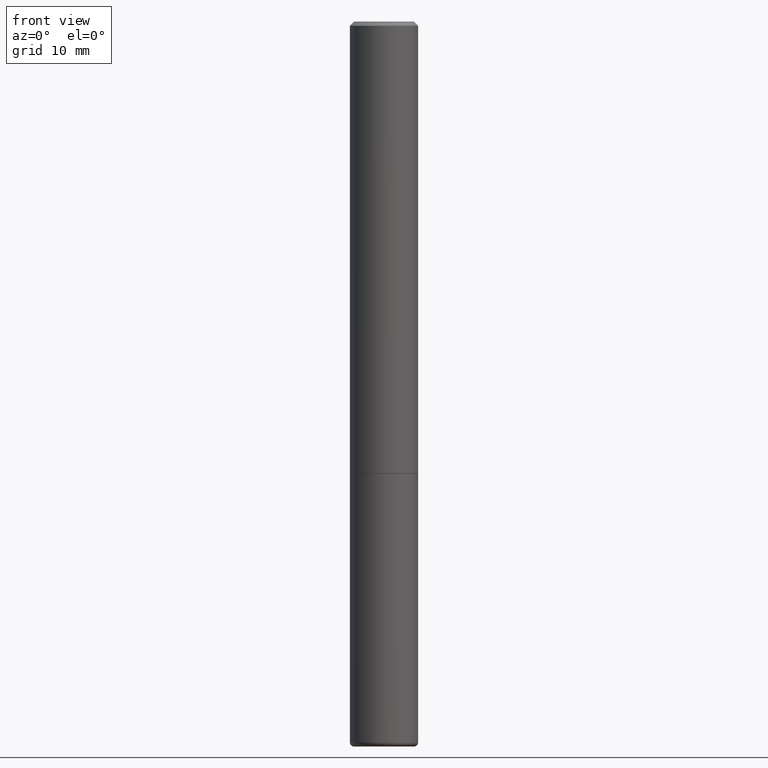
[diagram: clean part render]
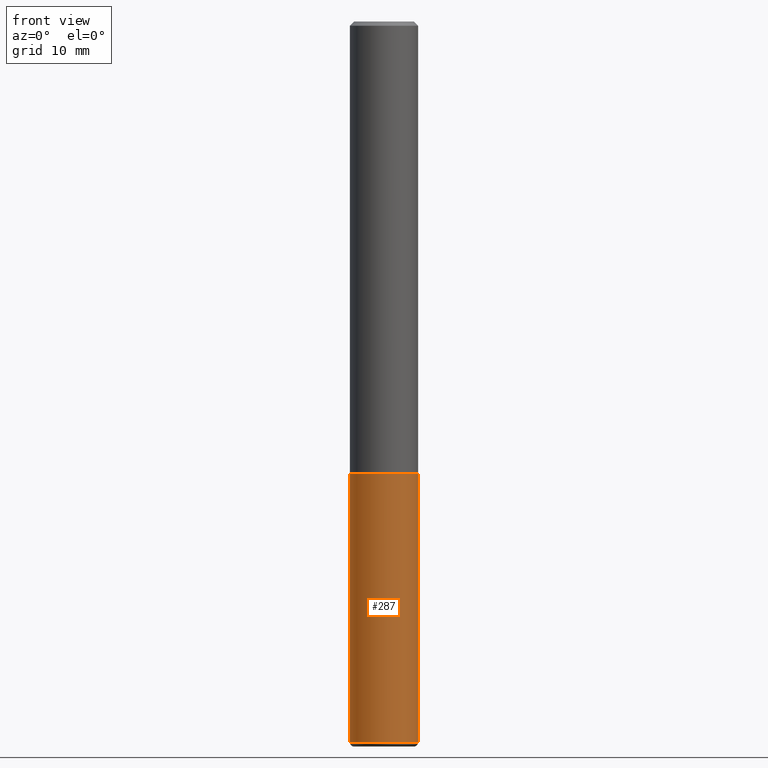
[diagram: same view with one face highlighted and labeled with its STEP entity id]
A machine part, front view. The second image highlights one B-rep face of the part: STEP entity #287.
In plain terms, the highlighted cylindrical surface (edge-blend (fillet) strip) has radius 4.0005 mm, axis along (-0, 0, 1).
Its self-contained STEP definition (entity closure, byte-faithful):
#4 = CYLINDRICAL_SURFACE ( 'NONE', #383, 0.1575000000000000289 ) ;
#23 = VECTOR ( 'NONE', #358, 39.37007874015748143 ) ;
#27 = CARTESIAN_POINT ( 'NONE',  ( -0.1574999999999999456, -1.049635530924122081E-14, -3.326799999999999979 ) ) ;
#42 = DIRECTION ( 'NONE',  ( -2.445468806185136597E-29, 3.491481338843145583E-15, 1.000000000000000000 ) ) ;
#46 = AXIS2_PLACEMENT_3D ( 'NONE', #225, #295, #394 ) ;
#61 = CIRCLE ( 'NONE', #46, 0.1575000000000000289 ) ;
#63 = DIRECTION ( 'NONE',  ( -2.445468806185136597E-29, 3.491481338843145583E-15, 1.000000000000000000 ) ) ;
#66 = EDGE_CURVE ( 'NONE', #211, #404, #61, .T. ) ;
#78 = ORIENTED_EDGE ( 'NONE', *, *, #66, .T. ) ;
#92 = DIRECTION ( 'NONE',  ( 1.000000000000000000, -6.982962677686268288E-15, 0.000000000000000000 ) ) ;
#134 = EDGE_CURVE ( 'NONE', #245, #137, #271, .T. ) ;
#137 = VERTEX_POINT ( 'NONE', #259 ) ;
#142 = ORIENTED_EDGE ( 'NONE', *, *, #324, .F. ) ;
#144 = ORIENTED_EDGE ( 'NONE', *, *, #134, .F. ) ;
#162 = CARTESIAN_POINT ( 'NONE',  ( 0.000000000000000000, 0.000000000000000000, 0.000000000000000000 ) ) ;
#200 = ORIENTED_EDGE ( 'NONE', *, *, #205, .T. ) ;
#205 = EDGE_CURVE ( 'NONE', #404, #137, #215, .T. ) ;
#211 = VERTEX_POINT ( 'NONE', #27 ) ;
#215 = LINE ( 'NONE', #381, #219 ) ;
#219 = VECTOR ( 'NONE', #378, 39.37007874015748143 ) ;
#225 = CARTESIAN_POINT ( 'NONE',  ( 8.135585624416713045E-29, -1.161546011806337842E-14, -3.326799999999999979 ) ) ;
#234 = DIRECTION ( 'NONE',  ( 1.000000000000000000, -6.982962677686267499E-15, 4.876176775795935232E-29 ) ) ;
#245 = VERTEX_POINT ( 'NONE', #291 ) ;
#255 = CARTESIAN_POINT ( 'NONE',  ( 0.1574999999999999456, -1.271527673979896669E-14, -3.326799999999999979 ) ) ;
#259 = CARTESIAN_POINT ( 'NONE',  ( 0.1575000000000000011, -8.385490731499577619E-15, -2.086699999999999999 ) ) ;
#264 = CARTESIAN_POINT ( 'NONE',  ( -0.1575000000000000289, 1.119104808822157998E-15, -7.747322767151478386E-30 ) ) ;
#269 = LINE ( 'NONE', #264, #23 ) ;
#271 = CIRCLE ( 'NONE', #388, 0.1575000000000000011 ) ;
#287 = ADVANCED_FACE ( 'NONE', ( #327 ), #4, .T. ) ;
#291 = CARTESIAN_POINT ( 'NONE',  ( -0.1575000000000000011, -8.331462305091527069E-15, -2.086699999999999999 ) ) ;
#295 = DIRECTION ( 'NONE',  ( -2.445468806185136597E-29, 3.491481338843145583E-15, 1.000000000000000000 ) ) ;
#313 = CARTESIAN_POINT ( 'NONE',  ( 5.102959757866523939E-29, -7.285674109763990928E-15, -2.086699999999999999 ) ) ;
#324 = EDGE_CURVE ( 'NONE', #211, #245, #269, .T. ) ;
#327 = FACE_OUTER_BOUND ( 'NONE', #340, .T. ) ;
#340 = EDGE_LOOP ( 'NONE', ( #142, #78, #200, #144 ) ) ;
#358 = DIRECTION ( 'NONE',  ( -2.445468806185136877E-29, 3.491481338843145188E-15, 1.000000000000000000 ) ) ;
#378 = DIRECTION ( 'NONE',  ( -2.445468806185136877E-29, 3.491481338843145188E-15, 1.000000000000000000 ) ) ;
#381 = CARTESIAN_POINT ( 'NONE',  ( 0.1575000000000000289, -1.099816621735587283E-15, 7.679978421878599434E-30 ) ) ;
#383 = AXIS2_PLACEMENT_3D ( 'NONE', #162, #42, #234 ) ;
#388 = AXIS2_PLACEMENT_3D ( 'NONE', #313, #63, #92 ) ;
#394 = DIRECTION ( 'NONE',  ( 1.000000000000000000, -6.982962677686273810E-15, 0.000000000000000000 ) ) ;
#404 = VERTEX_POINT ( 'NONE', #255 ) ;